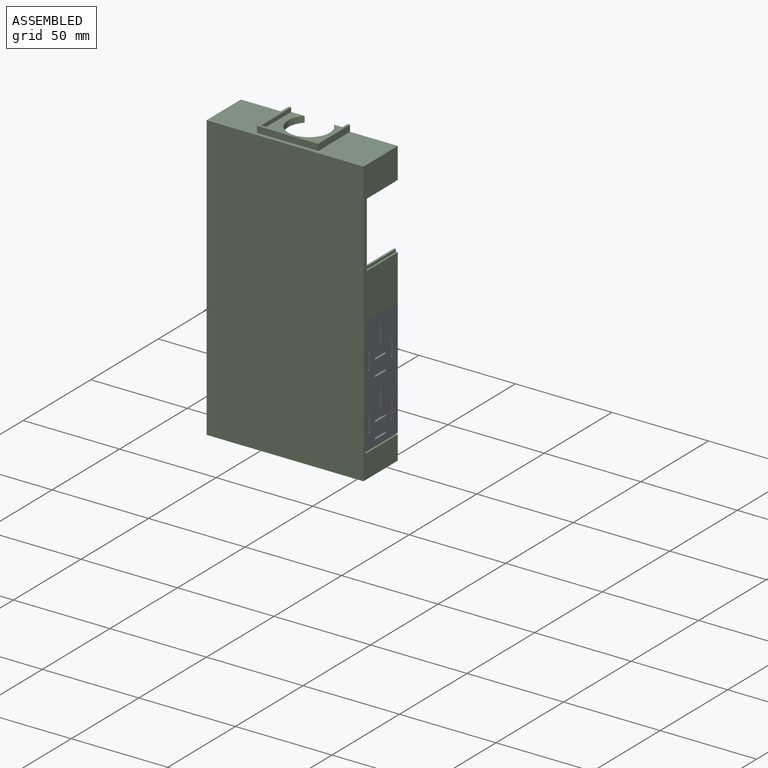
[diagram: assembled view]
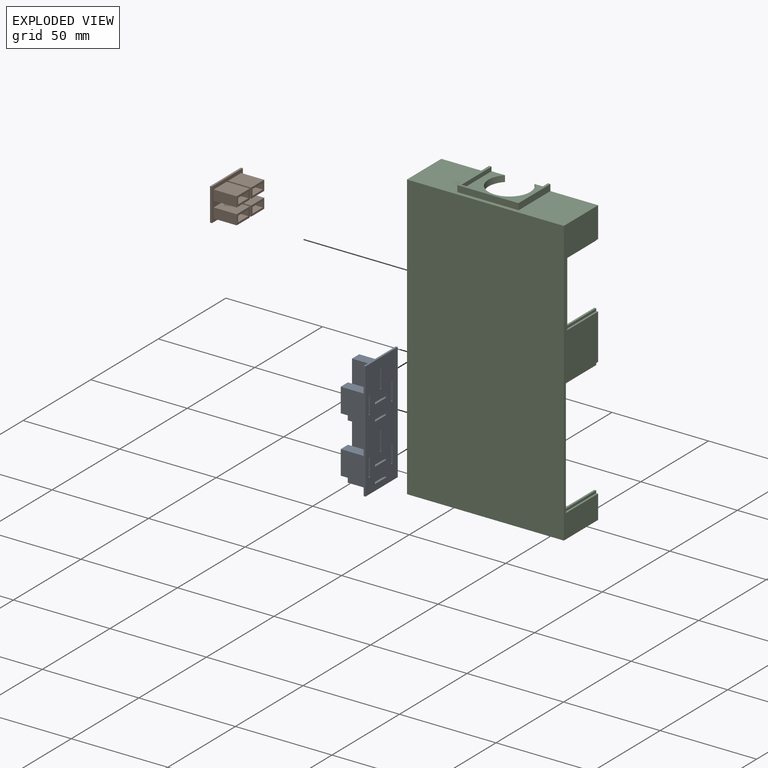
[diagram: exploded view]
GUIDED TOUR — MATED ASSEMBLY (Onshape document 6045e04a73274c1d2f5a1c67, AutoMate assembly 6045e04a73274c1d2f5a1c67_82855e615fc57292569aa869_5702accd36fd1a1ea6442523_default)

This assembly has 3 components, labeled P0..P2 below (a component is one placed occurrence of a part; the same part can appear more than once), held together by 4 mates. A mate is a constraint between two components; its type names the relative motion it leaves free:
  PLANAR — leaves sliding in the plane through the listed point (normal = the listed direction) and rotation about that normal free.
Axis/direction vectors are unit vectors and 'through' points are millimeter coordinates, both in the assembly's world frame.

MATES
  1. PLANAR "Planar 7": P1 <-> P2, direction (1.000, 0.000, 0.000) through (-189.74, -27.72, 78.71) mm
  2. PLANAR "Planar 6": P0 <-> P2, direction (0.000, 0.000, 1.000) through (-109.98, -28.23, 45.69) mm
  3. PLANAR "Planar 5": P0 <-> P2, direction (-1.000, 0.000, 0.000) through (-110.49, -26.33, 42.65) mm
  4. PLANAR "Planar 8": P1 <-> P2, direction (0.000, 0.000, 1.000) through (-190.24, -27.72, 87.16) mm

ASSEMBLY ORDER
  1. P1 — the base component [order verified]
  2. P0 [order verified]
  3. P2 [order verified]
Order-tag legend:
  [order verified] — this step's position reverses a verified removal order: the component was checked to insert without passing through the ones already placed.

Of the 3 components, 3 carry the full construction recipe — the FeatureScript program that regenerates the part's solid from scratch; the rest are supplied as boundary geometry only.
Each toured component is shown spotlighted twice — in the assembled view, then in the exploded view, where a leader line traces a displaced component back to its assembled socket (saturated green if recipe-attached, orange if geometry-only; every other component desaturated gray) — followed by its recipe or geometry summary and the mates that hold it.
NOTE — this tour is split across 2 documents so each fits a 32k-token context. This is document 1: the component sections continue in the remaining 1 document, each repeating the header above.
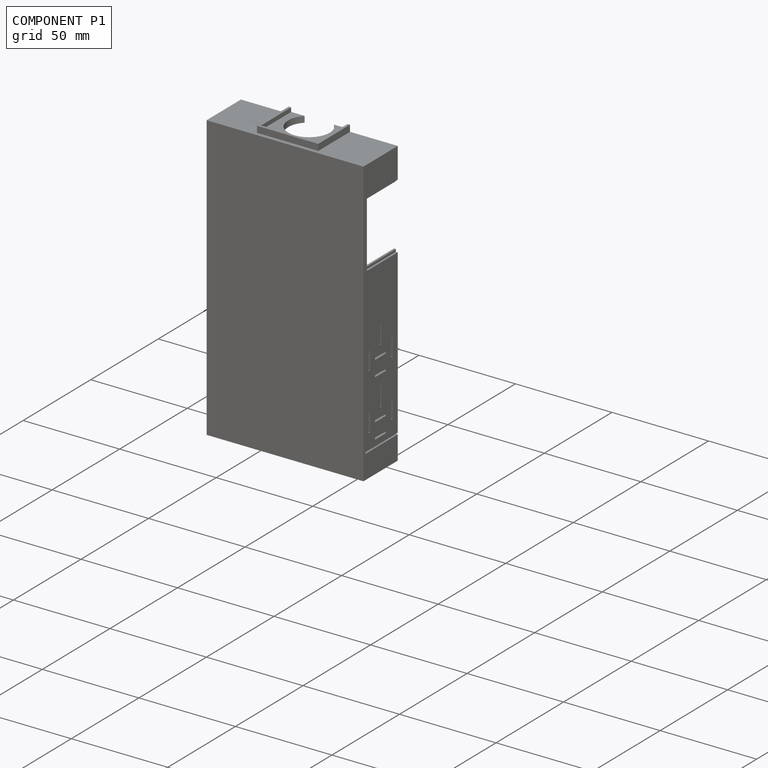
[diagram: component P1 — assembled]
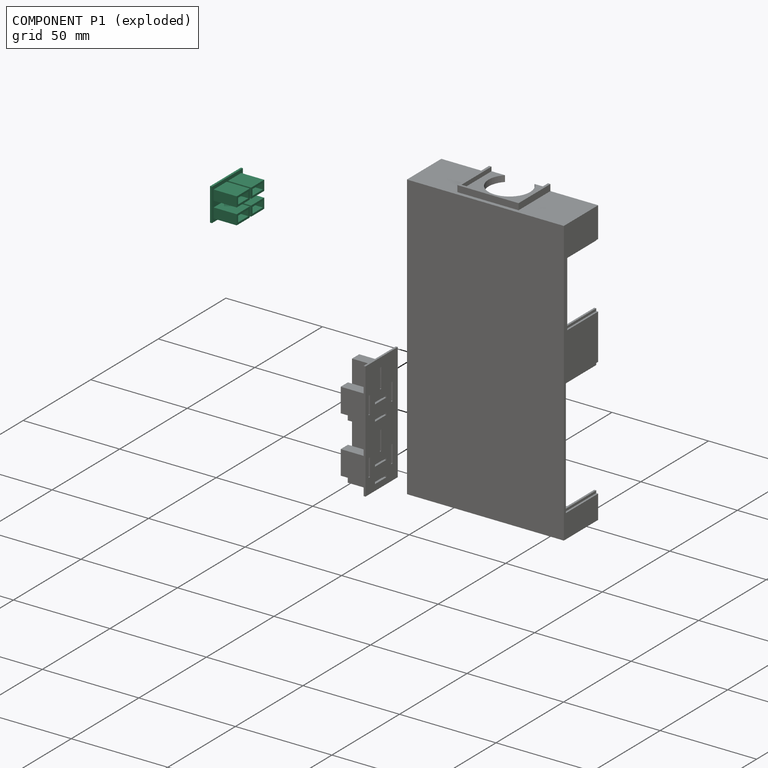
[diagram: component P1 — exploded]
COMPONENT P1 — recipe-attached (CADFS 00127338, mesh-verified: the recipe's output STEP matches this component's geometry to below the mesh-comparison resolution (tessellation chordal tolerance ~0.047 mm)).
Held by: PLANAR mate "Planar 7" to P2; PLANAR mate "Planar 8" to P2.
Construction recipe (FeatureScript — the CAD program that rebuilds this solid; sketch coordinates are in the units given by the * unit suffixes, e.g. mm):

FeatureScript 1511;
import(path : "onshape/std/geometry.fs", version : "1511.0");
import(path : "onshape/std/common.fs", version : "1511.0");
const mm = millimeter;
const VERTEX = EntityType.VERTEX;
const EDGE = EntityType.EDGE;
const FACE = EntityType.FACE;
const BODY = EntityType.BODY;
function v(x, y){return vector(x, y);}
function OD(order){return orderDisambiguation(order);}
function OSD(set){return originalSetDisambiguation(set);}
function TD(topology){return topologyDisambiguation(topology);}
function TDD(query){return trueDependencyDisambiguation(query);}
function sQuery(a, b, c) {return sketchEntityQuery(a, b, c);}

annotation { "Feature Type Name" : "Feature", "Feature Type Description" : "" }
export const myFeature = defineFeature(function(context is Context, id is Id, definition is map)
    precondition{}
    {
        {
            var Q0;
            Q0=qCreatedBy(makeId("Front.planeOp"),FACE);
            var sketch = newSketch(context, id + "F0", { "sketchPlane" : qUnion([Q0])});
            skLineSegment(sketch, "E0", {"start": v(-22.83, 35) * mm, "end": v(-22.83, 12.13) * mm});
            skLineSegment(sketch, "E1", {"start": v(-22.83, 12.13) * mm, "end": v(2.57, 12.13) * mm});
            skLineSegment(sketch, "E2", {"start": v(2.57, 12.13) * mm, "end": v(2.57, 35) * mm});
            skLineSegment(sketch, "E3", {"start": v(2.57, 35) * mm, "end": v(-22.83, 35) * mm});
            skSolve(sketch);
        }
        {
            var Q0;
            Q0 = qSketchRegion(id + "F0", true);
            extrude(context, id + "F1", {"entities" : qUnion([Q0]), "oppositeDirection" : true, "depth" : 1.02 * mm});
        }
        {
            var Q0;
            Q0=makeQuery(id+"F1.opExtrude","CAP_FACE",FACE,{"disambiguationData":[OSD([sQuery(id+"F0.wireOp",EDGE,"E0"),sQuery(id+"F0.wireOp",EDGE,"E1"),sQuery(id+"F0.wireOp",EDGE,"E2"),sQuery(id+"F0.wireOp",EDGE,"E3")])],"isStart":true});
            var sketch = newSketch(context, id + "F2", { "sketchPlane" : qUnion([Q0])});
            skLineSegment(sketch, "E4", {"start": v(-17.37, 28.13) * mm, "end": v(-17.37, 27.24) * mm});
            skLineSegment(sketch, "E5", {"start": v(-17.37, 27.24) * mm, "end": v(-11.02, 27.24) * mm});
            skLineSegment(sketch, "E6", {"start": v(-11.02, 27.24) * mm, "end": v(-11.02, 28.13) * mm});
            skLineSegment(sketch, "E7", {"start": v(-11.02, 28.13) * mm, "end": v(-17.37, 28.13) * mm});
            skLineSegment(sketch, "E8", {"start": v(-6.7, 28.13) * mm, "end": v(-6.7, 27.24) * mm});
            skLineSegment(sketch, "E9", {"start": v(-6.7, 27.24) * mm, "end": v(-0.36, 27.24) * mm});
            skLineSegment(sketch, "E10", {"start": v(-0.36, 27.24) * mm, "end": v(-0.36, 28.13) * mm});
            skLineSegment(sketch, "E11", {"start": v(-0.36, 28.13) * mm, "end": v(-6.7, 28.13) * mm});
            skLineSegment(sketch, "E12", {"start": v(-17.37, 19.62) * mm, "end": v(-17.37, 18.74) * mm});
            skLineSegment(sketch, "E13", {"start": v(-17.37, 18.74) * mm, "end": v(-11.02, 18.74) * mm});
            skLineSegment(sketch, "E14", {"start": v(-11.02, 18.74) * mm, "end": v(-11.02, 19.62) * mm});
            skLineSegment(sketch, "E15", {"start": v(-11.02, 19.62) * mm, "end": v(-17.37, 19.62) * mm});
            skLineSegment(sketch, "E16", {"start": v(-6.7, 19.62) * mm, "end": v(-6.7, 18.74) * mm});
            skLineSegment(sketch, "E17", {"start": v(-6.7, 18.74) * mm, "end": v(-0.36, 18.74) * mm});
            skLineSegment(sketch, "E18", {"start": v(-0.36, 18.74) * mm, "end": v(-0.36, 19.62) * mm});
            skLineSegment(sketch, "E19", {"start": v(-0.36, 19.62) * mm, "end": v(-6.7, 19.62) * mm});
            skSolve(sketch);
        }
        {
            var Q0;
            Q0 = qSketchRegion(id + "F2", true);
            extrude(context, id + "F3", {"entities" : qUnion([Q0]), "operationType" : NewBodyOperationType.REMOVE, "oppositeDirection" : true, "depth" : 25.4 * mm});
        }
        {
            var Q0;
            Q0=makeQuery(id+"F1.opExtrude","CAP_FACE",FACE,{"disambiguationData":[OSD([sQuery(id+"F0.wireOp",EDGE,"E0"),sQuery(id+"F0.wireOp",EDGE,"E1"),sQuery(id+"F0.wireOp",EDGE,"E2"),sQuery(id+"F0.wireOp",EDGE,"E3")])],"isStart":true});
            var sketch = newSketch(context, id + "F4", { "sketchPlane" : qUnion([Q0])});
            skLineSegment(sketch, "E20", {"start": v(-18, 29.28) * mm, "end": v(-18, 26.1) * mm});
            skLineSegment(sketch, "E21", {"start": v(-18, 26.1) * mm, "end": v(-10.39, 26.1) * mm});
            skLineSegment(sketch, "E22", {"start": v(-10.39, 26.1) * mm, "end": v(-10.39, 29.28) * mm});
            skLineSegment(sketch, "E23", {"start": v(-10.39, 29.28) * mm, "end": v(-18, 29.28) * mm});
            skLineSegment(sketch, "E24", {"start": v(-7.34, 29.28) * mm, "end": v(-7.34, 26.1) * mm});
            skLineSegment(sketch, "E25", {"start": v(-7.34, 26.1) * mm, "end": v(0.28, 26.1) * mm});
            skLineSegment(sketch, "E26", {"start": v(0.28, 26.1) * mm, "end": v(0.28, 29.28) * mm});
            skLineSegment(sketch, "E27", {"start": v(0.28, 29.28) * mm, "end": v(-7.34, 29.28) * mm});
            skLineSegment(sketch, "E28", {"start": v(-19.02, 30.3) * mm, "end": v(-19.02, 25.09) * mm});
            skLineSegment(sketch, "E29", {"start": v(-19.02, 25.09) * mm, "end": v(-9.37, 25.09) * mm});
            skLineSegment(sketch, "E30", {"start": v(-9.37, 25.09) * mm, "end": v(-9.37, 30.3) * mm});
            skLineSegment(sketch, "E31", {"start": v(-9.37, 30.3) * mm, "end": v(-19.02, 30.3) * mm});
            skLineSegment(sketch, "E32", {"start": v(-8.36, 30.3) * mm, "end": v(-8.36, 25.09) * mm});
            skLineSegment(sketch, "E33", {"start": v(-8.36, 25.09) * mm, "end": v(1.3, 25.09) * mm});
            skLineSegment(sketch, "E34", {"start": v(1.3, 25.09) * mm, "end": v(1.3, 30.3) * mm});
            skLineSegment(sketch, "E35", {"start": v(1.3, 30.3) * mm, "end": v(-8.36, 30.3) * mm});
            skLineSegment(sketch, "E36.0.1.0", {"start": v(-9.37, 21.91) * mm, "end": v(-19.02, 21.91) * mm});
            skLineSegment(sketch, "E36.0.1.1", {"start": v(-10.39, 20.9) * mm, "end": v(-18, 20.9) * mm});
            skLineSegment(sketch, "E36.0.1.2", {"start": v(-10.39, 17.72) * mm, "end": v(-10.39, 20.9) * mm});
            skLineSegment(sketch, "E36.0.1.3", {"start": v(-18, 17.72) * mm, "end": v(-10.39, 17.72) * mm});
            skLineSegment(sketch, "E36.0.1.4", {"start": v(-18, 20.9) * mm, "end": v(-18, 17.72) * mm});
            skLineSegment(sketch, "E36.0.1.5", {"start": v(-9.37, 16.7) * mm, "end": v(-9.37, 21.91) * mm});
            skLineSegment(sketch, "E36.0.1.6", {"start": v(-19.02, 16.7) * mm, "end": v(-9.37, 16.7) * mm});
            skLineSegment(sketch, "E36.0.1.7", {"start": v(-19.02, 21.91) * mm, "end": v(-19.02, 16.7) * mm});
            skLineSegment(sketch, "E36.0.1.8", {"start": v(-7.34, 17.72) * mm, "end": v(0.28, 17.72) * mm});
            skLineSegment(sketch, "E36.0.1.9", {"start": v(0.28, 20.9) * mm, "end": v(-7.34, 20.9) * mm});
            skLineSegment(sketch, "E36.0.1.10", {"start": v(-7.34, 20.9) * mm, "end": v(-7.34, 17.72) * mm});
            skLineSegment(sketch, "E36.0.1.11", {"start": v(0.28, 17.72) * mm, "end": v(0.28, 20.9) * mm});
            skLineSegment(sketch, "E36.0.1.12", {"start": v(1.3, 16.7) * mm, "end": v(1.3, 21.91) * mm});
            skLineSegment(sketch, "E36.0.1.13", {"start": v(1.3, 21.91) * mm, "end": v(-8.36, 21.91) * mm});
            skLineSegment(sketch, "E36.0.1.14", {"start": v(-8.36, 21.91) * mm, "end": v(-8.36, 16.7) * mm});
            skLineSegment(sketch, "E36.0.1.15", {"start": v(-8.36, 16.7) * mm, "end": v(1.3, 16.7) * mm});
            skLineSegment(sketch, "E36.direction1", {"start": v(-19.02, 30.3) * mm, "end": v(6.38, 30.3) * mm, "construction": true});
            skLineSegment(sketch, "E36.direction2", {"start": v(-19.02, 30.3) * mm, "end": v(-19.02, 21.91) * mm, "construction": true});
            skSolve(sketch);
        }
        {
            var Q0;
            Q0 = qSketchRegion(id + "F4", true);
            extrude(context, id + "F5", {"entities" : qUnion([Q0]), "operationType" : NewBodyOperationType.ADD, "oppositeDirection" : true, "depth" : 12.95 * mm});
        }
        {
            var Q0;
            Q0=makeQuery(id+"F1.opExtrude","CAP_FACE",FACE,{"disambiguationData":[OSD([sQuery(id+"F0.wireOp",EDGE,"E0"),sQuery(id+"F0.wireOp",EDGE,"E1"),sQuery(id+"F0.wireOp",EDGE,"E2"),sQuery(id+"F0.wireOp",EDGE,"E3")])],"isStart":true});
            var sketch = newSketch(context, id + "F6", { "sketchPlane" : qUnion([Q0])});
            skLineSegment(sketch, "E37", {"start": v(-22.83, 14.93) * mm, "end": v(2.57, 14.93) * mm});
            skLineSegment(sketch, "E38", {"start": v(2.57, 14.93) * mm, "end": v(2.57, 12.13) * mm});
            skLineSegment(sketch, "E39", {"start": v(2.57, 12.13) * mm, "end": v(-22.83, 12.13) * mm});
            skLineSegment(sketch, "E40", {"start": v(-22.83, 12.13) * mm, "end": v(-22.83, 14.93) * mm});
            skLineSegment(sketch, "E41", {"start": v(-22.83, 35) * mm, "end": v(-22.83, 31.94) * mm});
            skLineSegment(sketch, "E42", {"start": v(-22.83, 31.94) * mm, "end": v(2.57, 31.94) * mm});
            skLineSegment(sketch, "E43", {"start": v(2.57, 31.94) * mm, "end": v(2.57, 35) * mm});
            skLineSegment(sketch, "E44", {"start": v(2.57, 35) * mm, "end": v(-22.83, 35) * mm});
            skSolve(sketch);
        }
        {
            var Q0;
            Q0 = qSketchRegion(id + "F6", true);
            extrude(context, id + "F7", {"entities" : qUnion([Q0]), "operationType" : NewBodyOperationType.REMOVE, "endBound" : BoundingType.THROUGH_ALL, "oppositeDirection" : true, "depth" : 25.4 * mm});
        }
        {
            var Q0;
            Q0=makeQuery(id+"F1.opExtrude","CAP_FACE",FACE,{"disambiguationData":[OSD([sQuery(id+"F0.wireOp",EDGE,"E0"),sQuery(id+"F0.wireOp",EDGE,"E1"),sQuery(id+"F0.wireOp",EDGE,"E2"),sQuery(id+"F0.wireOp",EDGE,"E3")])],"isStart":true});
            var sketch = newSketch(context, id + "F8", { "sketchPlane" : qUnion([Q0])});
            skLineSegment(sketch, "E45", {"start": v(-22.83, 31.94) * mm, "end": v(-22.83, 14.93) * mm});
            skLineSegment(sketch, "E46", {"start": v(-22.83, 31.94) * mm, "end": v(-20.3, 31.94) * mm});
            skLineSegment(sketch, "E47", {"start": v(-20.3, 31.94) * mm, "end": v(-20.3, 14.93) * mm});
            skLineSegment(sketch, "E48", {"start": v(-20.3, 14.93) * mm, "end": v(-22.83, 14.93) * mm});
            skSolve(sketch);
        }
        {
            var Q0;
            Q0 = qSketchRegion(id + "F8", true);
            extrude(context, id + "F9", {"entities" : qUnion([Q0]), "operationType" : NewBodyOperationType.REMOVE, "oppositeDirection" : true, "depth" : 25.4 * mm});
        }
    });
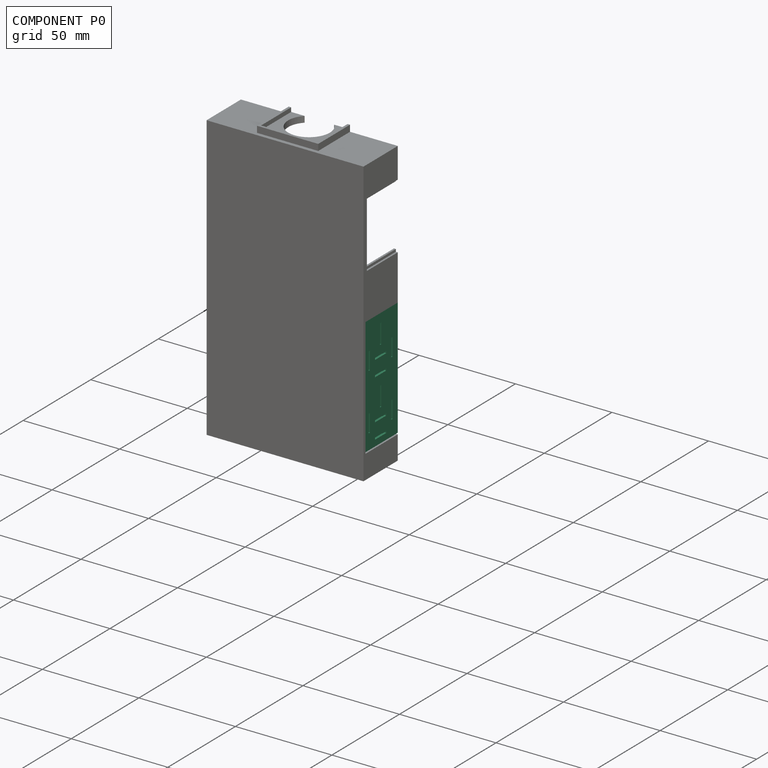
[diagram: component P0 — assembled]
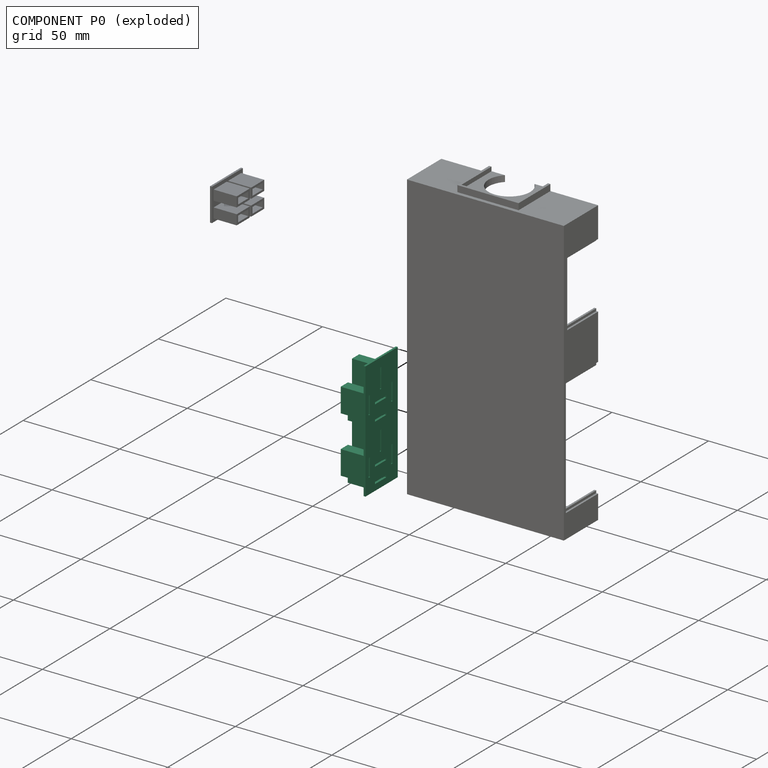
[diagram: component P0 — exploded]
COMPONENT P0 — recipe-attached (CADFS 00127337, mesh-verified: the recipe's output STEP matches this component's geometry to below the mesh-comparison resolution (tessellation chordal tolerance ~0.1 mm)).
Held by: PLANAR mate "Planar 6" to P2; PLANAR mate "Planar 5" to P2.
Construction recipe (FeatureScript — the CAD program that rebuilds this solid; sketch coordinates are in the units given by the * unit suffixes, e.g. mm):

FeatureScript 1511;
import(path : "onshape/std/geometry.fs", version : "1511.0");
import(path : "onshape/std/common.fs", version : "1511.0");
const mm = millimeter;
const VERTEX = EntityType.VERTEX;
const EDGE = EntityType.EDGE;
const FACE = EntityType.FACE;
const BODY = EntityType.BODY;
function v(x, y){return vector(x, y);}
function OD(order){return orderDisambiguation(order);}
function OSD(set){return originalSetDisambiguation(set);}
function TD(topology){return topologyDisambiguation(topology);}
function TDD(query){return trueDependencyDisambiguation(query);}
function sQuery(a, b, c) {return sketchEntityQuery(a, b, c);}

annotation { "Feature Type Name" : "Feature", "Feature Type Description" : "" }
export const myFeature = defineFeature(function(context is Context, id is Id, definition is map)
    precondition{}
    {
        {
            var Q0;
            Q0=qCreatedBy(makeId("Front.planeOp"),FACE);
            var sketch = newSketch(context, id + "F0", { "sketchPlane" : qUnion([Q0])});
            skLineSegment(sketch, "E0", {"start": v(-3.35, 4.3) * mm, "end": v(-3.35, -26.19) * mm});
            skLineSegment(sketch, "E1", {"start": v(-3.35, -26.19) * mm, "end": v(22.05, -26.19) * mm});
            skLineSegment(sketch, "E2", {"start": v(22.05, -26.19) * mm, "end": v(22.05, 4.3) * mm});
            skLineSegment(sketch, "E3", {"start": v(22.05, 4.3) * mm, "end": v(-3.35, 4.3) * mm});
            skSolve(sketch);
        }
        {
            var Q0;
            Q0 = qSketchRegion(id + "F0", true);
            extrude(context, id + "F1", {"entities" : qUnion([Q0]), "depth" : 1.02 * mm});
        }
        {
            var Q0;
            Q0=qCreatedBy(makeId("Front.planeOp"),FACE);
            var sketch = newSketch(context, id + "F2", { "sketchPlane" : qUnion([Q0])});
            skLineSegment(sketch, "E4", {"start": v(8.84, -0.4) * mm, "end": v(8.84, -10.57) * mm});
            skLineSegment(sketch, "E5", {"start": v(8.84, -10.57) * mm, "end": v(9.85, -10.57) * mm});
            skLineSegment(sketch, "E6", {"start": v(9.85, -10.57) * mm, "end": v(9.85, -0.4) * mm});
            skLineSegment(sketch, "E7", {"start": v(9.85, -0.4) * mm, "end": v(8.84, -0.4) * mm});
            skLineSegment(sketch, "E8", {"start": v(0.46, -10.36) * mm, "end": v(0.46, -19.5) * mm});
            skLineSegment(sketch, "E9", {"start": v(0.46, -19.5) * mm, "end": v(1.47, -19.5) * mm});
            skLineSegment(sketch, "E10", {"start": v(1.47, -19.5) * mm, "end": v(1.47, -10.36) * mm});
            skLineSegment(sketch, "E11", {"start": v(1.47, -10.36) * mm, "end": v(0.46, -10.36) * mm});
            skLineSegment(sketch, "E12", {"start": v(17.22, -10.36) * mm, "end": v(17.22, -19.5) * mm});
            skLineSegment(sketch, "E13", {"start": v(17.22, -19.5) * mm, "end": v(18.24, -19.5) * mm});
            skLineSegment(sketch, "E14", {"start": v(18.24, -19.5) * mm, "end": v(18.24, -10.36) * mm});
            skLineSegment(sketch, "E15", {"start": v(17.22, -10.36) * mm, "end": v(18.24, -10.36) * mm});
            skLineSegment(sketch, "E16", {"start": v(5.15, -15.14) * mm, "end": v(5.15, -16.15) * mm});
            skLineSegment(sketch, "E17", {"start": v(5.15, -16.15) * mm, "end": v(13.54, -16.15) * mm});
            skLineSegment(sketch, "E18", {"start": v(13.54, -16.15) * mm, "end": v(13.54, -15.14) * mm});
            skLineSegment(sketch, "E19", {"start": v(5.15, -15.14) * mm, "end": v(13.54, -15.14) * mm});
            skLineSegment(sketch, "E20", {"start": v(5.15, -24.28) * mm, "end": v(13.54, -24.28) * mm});
            skLineSegment(sketch, "E21", {"start": v(13.54, -24.28) * mm, "end": v(13.54, -23.27) * mm});
            skLineSegment(sketch, "E22", {"start": v(13.54, -23.27) * mm, "end": v(5.15, -23.27) * mm});
            skLineSegment(sketch, "E23", {"start": v(5.15, -23.27) * mm, "end": v(5.15, -24.28) * mm});
            skSolve(sketch);
        }
        {
            var Q0;
            Q0 = qSketchRegion(id + "F2", true);
            extrude(context, id + "F3", {"entities" : qUnion([Q0]), "operationType" : NewBodyOperationType.REMOVE, "endBound" : BoundingType.THROUGH_ALL, "depth" : 25.4 * mm});
        }
        {
            var Q0;
            Q0=makeQuery(id+"F1.opExtrude","CAP_FACE",FACE,{"disambiguationData":[OSD([sQuery(id+"F0.wireOp",EDGE,"E0"),sQuery(id+"F0.wireOp",EDGE,"E1"),sQuery(id+"F0.wireOp",EDGE,"E2"),sQuery(id+"F0.wireOp",EDGE,"E3")])],"isStart":false});
            var sketch = newSketch(context, id + "F4", { "sketchPlane" : qUnion([Q0])});
            skLineSegment(sketch, "E24", {"start": v(-3.35, -26.19) * mm, "end": v(-3.35, -56.67) * mm});
            skLineSegment(sketch, "E25", {"start": v(-3.35, -56.67) * mm, "end": v(22.05, -56.67) * mm});
            skLineSegment(sketch, "E26", {"start": v(22.05, -56.67) * mm, "end": v(22.05, -26.19) * mm});
            skLineSegment(sketch, "E27", {"start": v(-3.35, -26.19) * mm, "end": v(22.05, -26.19) * mm});
            skSolve(sketch);
        }
        {
            var Q0;
            Q0 = qSketchRegion(id + "F4", true);
            extrude(context, id + "F5", {"entities" : qUnion([Q0]), "operationType" : NewBodyOperationType.ADD, "oppositeDirection" : true, "depth" : 1.02 * mm});
        }
        {
            var Q0;
            Q0=makeQuery(id+"F5.boolean.opBoolean","MERGE",FACE,{"derivedFrom":[makeQuery(id+"F1.opExtrude","CAP_FACE",FACE,{"disambiguationData":[OSD([sQuery(id+"F0.wireOp",EDGE,"E0"),sQuery(id+"F0.wireOp",EDGE,"E1"),sQuery(id+"F0.wireOp",EDGE,"E2"),sQuery(id+"F0.wireOp",EDGE,"E3")])],"isStart":false}),makeQuery(id+"F5.opExtrude","CAP_FACE",FACE,{"disambiguationData":[OSD([sQuery(id+"F4.wireOp",EDGE,"E24"),sQuery(id+"F4.wireOp",EDGE,"E25"),sQuery(id+"F4.wireOp",EDGE,"E26"),sQuery(id+"F4.wireOp",EDGE,"E27")])],"isStart":true})]});
            var sketch = newSketch(context, id + "F6", { "sketchPlane" : qUnion([Q0])});
            skLineSegment(sketch, "E28", {"start": v(1.47, -10.36) * mm, "end": v(0.46, -10.36) * mm});
            skLineSegment(sketch, "E29", {"start": v(0.46, -10.36) * mm, "end": v(0.46, -19.5) * mm});
            skLineSegment(sketch, "E30", {"start": v(0.46, -19.5) * mm, "end": v(1.47, -19.5) * mm});
            skLineSegment(sketch, "E31", {"start": v(1.47, -19.5) * mm, "end": v(1.47, -10.36) * mm});
            skLineSegment(sketch, "E32", {"start": v(5.15, -15.14) * mm, "end": v(5.15, -16.15) * mm});
            skLineSegment(sketch, "E33", {"start": v(5.15, -16.15) * mm, "end": v(13.54, -16.15) * mm});
            skLineSegment(sketch, "E34", {"start": v(13.54, -16.15) * mm, "end": v(13.54, -15.14) * mm});
            skLineSegment(sketch, "E35", {"start": v(13.54, -15.14) * mm, "end": v(5.15, -15.14) * mm});
            skLineSegment(sketch, "E36", {"start": v(8.84, -10.57) * mm, "end": v(9.85, -10.57) * mm});
            skLineSegment(sketch, "E37", {"start": v(9.85, -10.57) * mm, "end": v(9.85, -0.4) * mm});
            skLineSegment(sketch, "E38", {"start": v(9.85, -0.4) * mm, "end": v(8.84, -0.4) * mm});
            skLineSegment(sketch, "E39", {"start": v(8.84, -0.4) * mm, "end": v(8.84, -10.57) * mm});
            skLineSegment(sketch, "E40", {"start": v(17.22, -10.36) * mm, "end": v(18.24, -10.36) * mm});
            skLineSegment(sketch, "E41", {"start": v(18.24, -10.36) * mm, "end": v(18.24, -19.5) * mm});
            skLineSegment(sketch, "E42", {"start": v(18.24, -19.5) * mm, "end": v(17.22, -19.5) * mm});
            skLineSegment(sketch, "E43", {"start": v(17.22, -19.5) * mm, "end": v(17.22, -10.36) * mm});
            skLineSegment(sketch, "E44", {"start": v(13.54, -23.27) * mm, "end": v(13.54, -24.28) * mm});
            skLineSegment(sketch, "E45", {"start": v(13.54, -24.28) * mm, "end": v(5.15, -24.28) * mm});
            skLineSegment(sketch, "E46", {"start": v(5.15, -24.28) * mm, "end": v(5.15, -23.27) * mm});
            skLineSegment(sketch, "E47", {"start": v(5.15, -23.27) * mm, "end": v(13.54, -23.27) * mm});
            skLineSegment(sketch, "E48.0.1.0", {"start": v(9.85, -39.78) * mm, "end": v(9.85, -29.62) * mm});
            skLineSegment(sketch, "E48.0.1.1", {"start": v(8.84, -29.62) * mm, "end": v(8.84, -39.78) * mm});
            skLineSegment(sketch, "E48.0.1.2", {"start": v(17.22, -48.72) * mm, "end": v(17.22, -39.57) * mm});
            skLineSegment(sketch, "E48.0.1.3", {"start": v(18.24, -39.57) * mm, "end": v(18.24, -48.72) * mm});
            skLineSegment(sketch, "E48.0.1.4", {"start": v(13.54, -44.35) * mm, "end": v(5.15, -44.35) * mm});
            skLineSegment(sketch, "E48.0.1.5", {"start": v(5.15, -45.36) * mm, "end": v(13.54, -45.36) * mm});
            skLineSegment(sketch, "E48.0.1.6", {"start": v(5.15, -52.48) * mm, "end": v(13.54, -52.48) * mm});
            skLineSegment(sketch, "E48.0.1.7", {"start": v(13.54, -53.5) * mm, "end": v(5.15, -53.5) * mm});
            skLineSegment(sketch, "E48.0.1.8", {"start": v(1.47, -48.72) * mm, "end": v(1.47, -39.57) * mm});
            skLineSegment(sketch, "E48.0.1.9", {"start": v(0.46, -39.57) * mm, "end": v(0.46, -48.72) * mm});
            skLineSegment(sketch, "E48.0.1.10", {"start": v(1.47, -39.57) * mm, "end": v(0.46, -39.57) * mm});
            skLineSegment(sketch, "E48.0.1.11", {"start": v(0.46, -48.72) * mm, "end": v(1.47, -48.72) * mm});
            skLineSegment(sketch, "E48.0.1.12", {"start": v(5.15, -44.35) * mm, "end": v(5.15, -45.36) * mm});
            skLineSegment(sketch, "E48.0.1.13", {"start": v(13.54, -45.36) * mm, "end": v(13.54, -44.35) * mm});
            skLineSegment(sketch, "E48.0.1.14", {"start": v(17.22, -39.57) * mm, "end": v(18.24, -39.57) * mm});
            skLineSegment(sketch, "E48.0.1.15", {"start": v(18.24, -48.72) * mm, "end": v(17.22, -48.72) * mm});
            skLineSegment(sketch, "E48.0.1.16", {"start": v(8.84, -39.78) * mm, "end": v(9.85, -39.78) * mm});
            skLineSegment(sketch, "E48.0.1.17", {"start": v(9.85, -29.62) * mm, "end": v(8.84, -29.62) * mm});
            skLineSegment(sketch, "E48.0.1.18", {"start": v(5.15, -53.5) * mm, "end": v(5.15, -52.48) * mm});
            skLineSegment(sketch, "E48.0.1.19", {"start": v(13.54, -52.48) * mm, "end": v(13.54, -53.5) * mm});
            skLineSegment(sketch, "E48.direction1", {"start": v(9.85, -10.57) * mm, "end": v(35.25, -10.57) * mm, "construction": true});
            skLineSegment(sketch, "E48.direction2", {"start": v(9.85, -10.57) * mm, "end": v(9.85, -39.78) * mm, "construction": true});
            skSolve(sketch);
        }
        {
            var Q0;
            Q0 = qSketchRegion(id + "F6", true);
            extrude(context, id + "F7", {"entities" : qUnion([Q0]), "operationType" : NewBodyOperationType.REMOVE, "endBound" : BoundingType.THROUGH_ALL, "oppositeDirection" : true, "depth" : 25.4 * mm});
        }
        {
            var Q0;
            Q0=makeQuery(id+"F5.boolean.opBoolean","MERGE",FACE,{"derivedFrom":[makeQuery(id+"F1.opExtrude","CAP_FACE",FACE,{"disambiguationData":[OSD([sQuery(id+"F0.wireOp",EDGE,"E0"),sQuery(id+"F0.wireOp",EDGE,"E1"),sQuery(id+"F0.wireOp",EDGE,"E2"),sQuery(id+"F0.wireOp",EDGE,"E3")])],"isStart":false}),makeQuery(id+"F5.opExtrude","CAP_FACE",FACE,{"disambiguationData":[OSD([sQuery(id+"F4.wireOp",EDGE,"E24"),sQuery(id+"F4.wireOp",EDGE,"E25"),sQuery(id+"F4.wireOp",EDGE,"E26"),sQuery(id+"F4.wireOp",EDGE,"E27")])],"isStart":true})]});
            var sketch = newSketch(context, id + "F8", { "sketchPlane" : qUnion([Q0])});
            skLineSegment(sketch, "E49", {"start": v(11, 0.23) * mm, "end": v(7.7, 0.23) * mm});
            skLineSegment(sketch, "E50", {"start": v(7.7, 0.23) * mm, "end": v(7.7, -11.2) * mm});
            skLineSegment(sketch, "E51", {"start": v(7.7, -11.2) * mm, "end": v(11, -11.2) * mm});
            skLineSegment(sketch, "E52", {"start": v(11, -11.2) * mm, "end": v(11, 0.23) * mm});
            skLineSegment(sketch, "E53", {"start": v(-0.69, -9.73) * mm, "end": v(2.61, -9.73) * mm});
            skLineSegment(sketch, "E54", {"start": v(2.61, -9.73) * mm, "end": v(2.61, -20.14) * mm});
            skLineSegment(sketch, "E55", {"start": v(2.61, -20.14) * mm, "end": v(-0.69, -20.14) * mm});
            skLineSegment(sketch, "E56", {"start": v(-0.69, -20.14) * mm, "end": v(-0.69, -9.73) * mm});
            skLineSegment(sketch, "E57", {"start": v(4.52, -22.12) * mm, "end": v(4.52, -25.43) * mm});
            skLineSegment(sketch, "E58", {"start": v(4.52, -25.43) * mm, "end": v(14.17, -25.43) * mm});
            skLineSegment(sketch, "E59", {"start": v(14.17, -25.43) * mm, "end": v(14.17, -22.12) * mm});
            skLineSegment(sketch, "E60", {"start": v(14.17, -22.12) * mm, "end": v(4.52, -22.12) * mm});
            skLineSegment(sketch, "E61", {"start": v(16.08, -9.73) * mm, "end": v(16.08, -20.14) * mm});
            skLineSegment(sketch, "E62", {"start": v(16.08, -20.14) * mm, "end": v(19.38, -20.14) * mm});
            skLineSegment(sketch, "E63", {"start": v(19.38, -20.14) * mm, "end": v(19.38, -9.73) * mm});
            skLineSegment(sketch, "E64", {"start": v(19.38, -9.73) * mm, "end": v(16.08, -9.73) * mm});
            skLineSegment(sketch, "E65", {"start": v(4.52, -14) * mm, "end": v(4.52, -17.3) * mm});
            skLineSegment(sketch, "E66", {"start": v(4.52, -17.3) * mm, "end": v(14.17, -17.3) * mm});
            skLineSegment(sketch, "E67", {"start": v(14.17, -17.3) * mm, "end": v(14.17, -14) * mm});
            skLineSegment(sketch, "E68", {"start": v(14.17, -14) * mm, "end": v(4.52, -14) * mm});
            skLineSegment(sketch, "E69", {"start": v(6.68, 1.24) * mm, "end": v(6.68, -12.22) * mm});
            skLineSegment(sketch, "E70", {"start": v(6.68, -12.22) * mm, "end": v(12.01, -12.22) * mm});
            skLineSegment(sketch, "E71", {"start": v(12.01, -12.22) * mm, "end": v(12.01, 1.24) * mm});
            skLineSegment(sketch, "E72", {"start": v(12.01, 1.24) * mm, "end": v(6.68, 1.24) * mm});
            skLineSegment(sketch, "E73", {"start": v(3.63, -8.71) * mm, "end": v(-1.7, -8.71) * mm});
            skLineSegment(sketch, "E74", {"start": v(-1.7, -8.71) * mm, "end": v(-1.7, -21.16) * mm});
            skLineSegment(sketch, "E75", {"start": v(-1.7, -21.16) * mm, "end": v(3.63, -21.16) * mm});
            skLineSegment(sketch, "E76", {"start": v(3.63, -21.16) * mm, "end": v(3.63, -8.71) * mm});
            skLineSegment(sketch, "E77", {"start": v(3.5, -21.1) * mm, "end": v(3.5, -26.44) * mm});
            skLineSegment(sketch, "E78", {"start": v(3.5, -26.44) * mm, "end": v(15.19, -26.44) * mm});
            skLineSegment(sketch, "E79", {"start": v(15.19, -26.44) * mm, "end": v(15.19, -21.1) * mm});
            skLineSegment(sketch, "E80", {"start": v(15.19, -21.1) * mm, "end": v(3.5, -21.1) * mm});
            skLineSegment(sketch, "E81", {"start": v(15.06, -8.71) * mm, "end": v(15.06, -21.16) * mm});
            skLineSegment(sketch, "E82", {"start": v(15.06, -21.16) * mm, "end": v(20.4, -21.16) * mm});
            skLineSegment(sketch, "E83", {"start": v(20.4, -21.16) * mm, "end": v(20.4, -8.71) * mm});
            skLineSegment(sketch, "E84", {"start": v(20.4, -8.71) * mm, "end": v(15.06, -8.71) * mm});
            skLineSegment(sketch, "E85", {"start": v(3.5, -12.98) * mm, "end": v(3.5, -18.31) * mm});
            skLineSegment(sketch, "E86", {"start": v(3.5, -18.31) * mm, "end": v(15.19, -18.31) * mm});
            skLineSegment(sketch, "E87", {"start": v(15.19, -18.31) * mm, "end": v(15.19, -12.98) * mm});
            skLineSegment(sketch, "E88", {"start": v(15.19, -12.98) * mm, "end": v(3.5, -12.98) * mm});
            skLineSegment(sketch, "E89.0.1.0", {"start": v(12.01, -27.97) * mm, "end": v(6.68, -27.97) * mm});
            skLineSegment(sketch, "E89.0.1.1", {"start": v(11, -28.98) * mm, "end": v(7.7, -28.98) * mm});
            skLineSegment(sketch, "E89.0.1.2", {"start": v(6.68, -27.97) * mm, "end": v(6.68, -41.43) * mm});
            skLineSegment(sketch, "E89.0.1.3", {"start": v(12.01, -41.43) * mm, "end": v(12.01, -27.97) * mm});
            skLineSegment(sketch, "E89.0.1.4", {"start": v(11, -40.41) * mm, "end": v(11, -28.98) * mm});
            skLineSegment(sketch, "E89.0.1.5", {"start": v(7.7, -28.98) * mm, "end": v(7.7, -40.41) * mm});
            skLineSegment(sketch, "E89.0.1.6", {"start": v(7.7, -40.41) * mm, "end": v(11, -40.41) * mm});
            skLineSegment(sketch, "E89.0.1.7", {"start": v(6.68, -41.43) * mm, "end": v(12.01, -41.43) * mm});
            skLineSegment(sketch, "E89.0.1.8", {"start": v(16.08, -38.94) * mm, "end": v(16.08, -49.35) * mm});
            skLineSegment(sketch, "E89.0.1.9", {"start": v(15.06, -37.92) * mm, "end": v(15.06, -50.37) * mm});
            skLineSegment(sketch, "E89.0.1.10", {"start": v(15.06, -50.37) * mm, "end": v(20.4, -50.37) * mm});
            skLineSegment(sketch, "E89.0.1.11", {"start": v(16.08, -49.35) * mm, "end": v(19.38, -49.35) * mm});
            skLineSegment(sketch, "E89.0.1.12", {"start": v(20.4, -50.37) * mm, "end": v(20.4, -37.92) * mm});
            skLineSegment(sketch, "E89.0.1.13", {"start": v(19.38, -49.35) * mm, "end": v(19.38, -38.94) * mm});
            skLineSegment(sketch, "E89.0.1.14", {"start": v(19.38, -38.94) * mm, "end": v(16.08, -38.94) * mm});
            skLineSegment(sketch, "E89.0.1.15", {"start": v(20.4, -37.92) * mm, "end": v(15.06, -37.92) * mm});
            skLineSegment(sketch, "E89.0.1.16", {"start": v(15.19, -42.19) * mm, "end": v(3.5, -42.19) * mm});
            skLineSegment(sketch, "E89.0.1.17", {"start": v(14.17, -43.2) * mm, "end": v(4.52, -43.2) * mm});
            skLineSegment(sketch, "E89.0.1.18", {"start": v(4.52, -46.5) * mm, "end": v(14.17, -46.5) * mm});
            skLineSegment(sketch, "E89.0.1.19", {"start": v(3.5, -47.52) * mm, "end": v(15.19, -47.52) * mm});
            skLineSegment(sketch, "E89.0.1.20", {"start": v(3.5, -42.19) * mm, "end": v(3.5, -47.52) * mm});
            skLineSegment(sketch, "E89.0.1.21", {"start": v(4.52, -43.2) * mm, "end": v(4.52, -46.5) * mm});
            skLineSegment(sketch, "E89.0.1.22", {"start": v(2.61, -38.94) * mm, "end": v(2.61, -49.35) * mm});
            skLineSegment(sketch, "E89.0.1.23", {"start": v(3.63, -50.37) * mm, "end": v(3.63, -37.92) * mm});
            skLineSegment(sketch, "E89.0.1.24", {"start": v(3.63, -37.92) * mm, "end": v(-1.7, -37.92) * mm});
            skLineSegment(sketch, "E89.0.1.25", {"start": v(-1.7, -37.92) * mm, "end": v(-1.7, -50.37) * mm});
            skLineSegment(sketch, "E89.0.1.26", {"start": v(2.61, -49.35) * mm, "end": v(-0.69, -49.35) * mm});
            skLineSegment(sketch, "E89.0.1.27", {"start": v(-0.69, -49.35) * mm, "end": v(-0.69, -38.94) * mm});
            skLineSegment(sketch, "E89.0.1.28", {"start": v(-1.7, -50.37) * mm, "end": v(3.63, -50.37) * mm});
            skLineSegment(sketch, "E89.0.1.29", {"start": v(-0.69, -38.94) * mm, "end": v(2.61, -38.94) * mm});
            skLineSegment(sketch, "E89.0.1.30", {"start": v(15.19, -50.32) * mm, "end": v(3.5, -50.32) * mm});
            skLineSegment(sketch, "E89.0.1.31", {"start": v(14.17, -51.33) * mm, "end": v(4.52, -51.33) * mm});
            skLineSegment(sketch, "E89.0.1.32", {"start": v(3.5, -50.32) * mm, "end": v(3.5, -55.65) * mm});
            skLineSegment(sketch, "E89.0.1.33", {"start": v(4.52, -51.33) * mm, "end": v(4.52, -54.64) * mm});
            skLineSegment(sketch, "E89.0.1.34", {"start": v(3.5, -55.65) * mm, "end": v(15.19, -55.65) * mm});
            skLineSegment(sketch, "E89.0.1.35", {"start": v(4.52, -54.64) * mm, "end": v(14.17, -54.64) * mm});
            skLineSegment(sketch, "E89.0.1.36", {"start": v(14.17, -54.64) * mm, "end": v(14.17, -51.33) * mm});
            skLineSegment(sketch, "E89.0.1.37", {"start": v(15.19, -55.65) * mm, "end": v(15.19, -50.32) * mm});
            skLineSegment(sketch, "E89.direction1", {"start": v(6.68, 1.24) * mm, "end": v(32.08, 1.24) * mm, "construction": true});
            skLineSegment(sketch, "E89.direction2", {"start": v(6.68, 1.24) * mm, "end": v(6.68, -27.97) * mm, "construction": true});
            skLineSegment(sketch, "E90", {"start": v(14.17, -43.2) * mm, "end": v(14.17, -46.5) * mm});
            skLineSegment(sketch, "E91", {"start": v(15.19, -42.19) * mm, "end": v(15.19, -47.52) * mm});
            skSolve(sketch);
        }
        {
            var Q0;
            Q0 = qSketchRegion(id + "F8", true);
            extrude(context, id + "F9", {"entities" : qUnion([Q0]), "operationType" : NewBodyOperationType.ADD, "oppositeDirection" : true, "depth" : 12.95 * mm});
        }
        {
            var Q0;
            Q0=makeQuery(id+"F5.boolean.opBoolean","MERGE",FACE,{"derivedFrom":[makeQuery(id+"F1.opExtrude","CAP_FACE",FACE,{"disambiguationData":[OSD([sQuery(id+"F0.wireOp",EDGE,"E0"),sQuery(id+"F0.wireOp",EDGE,"E1"),sQuery(id+"F0.wireOp",EDGE,"E2"),sQuery(id+"F0.wireOp",EDGE,"E3")])],"isStart":false}),makeQuery(id+"F5.opExtrude","CAP_FACE",FACE,{"disambiguationData":[OSD([sQuery(id+"F4.wireOp",EDGE,"E24"),sQuery(id+"F4.wireOp",EDGE,"E25"),sQuery(id+"F4.wireOp",EDGE,"E26"),sQuery(id+"F4.wireOp",EDGE,"E27")])],"isStart":true})]});
            var sketch = newSketch(context, id + "F10", { "sketchPlane" : qUnion([Q0])});
            skLineSegment(sketch, "E92", {"start": v(-3.35, 4.3) * mm, "end": v(-1.83, 4.3) * mm});
            skLineSegment(sketch, "E93", {"start": v(-1.83, 4.3) * mm, "end": v(-1.83, -56.67) * mm});
            skLineSegment(sketch, "E94", {"start": v(-1.83, -56.67) * mm, "end": v(-3.35, -56.67) * mm});
            skLineSegment(sketch, "E95", {"start": v(-3.35, -56.67) * mm, "end": v(-3.35, 4.3) * mm});
            skSolve(sketch);
        }
        {
            var Q0;
            Q0 = qSketchRegion(id + "F10", true);
            extrude(context, id + "F11", {"entities" : qUnion([Q0]), "operationType" : NewBodyOperationType.REMOVE, "oppositeDirection" : true, "depth" : 25.4 * mm});
        }
    });
